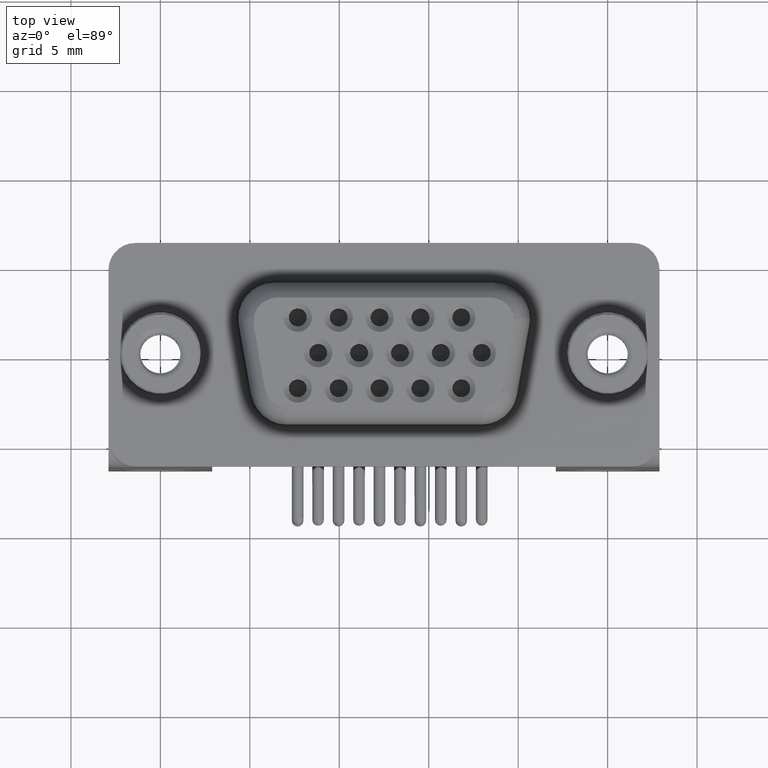
[diagram: clean part render]
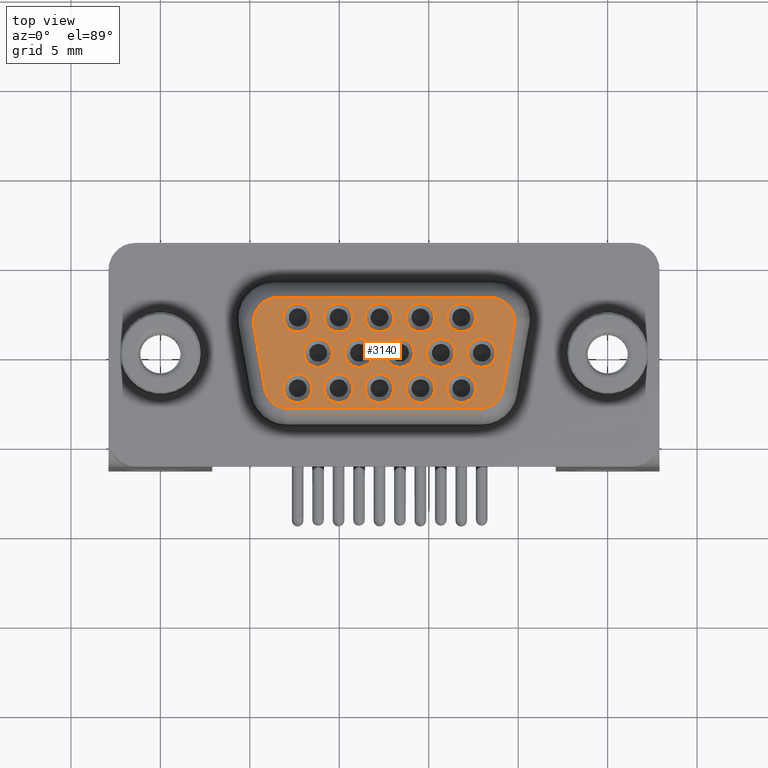
[diagram: same view with one face highlighted and labeled with its STEP entity id]
A machine part, top view. The second image highlights one B-rep face of the part: STEP entity #3140.
In plain terms, the highlighted planar face has unit normal (0, 0, -1).
Its self-contained STEP definition (entity closure, byte-faithful):
#20 = EDGE_LOOP ( 'NONE', ( #2665, #11763 ) ) ;
#36 = DIRECTION ( 'NONE',  ( -0.0000000000000000000, -0.0000000000000000000, -1.000000000000000000 ) ) ;
#45 = EDGE_CURVE ( 'NONE', #363, #9414, #1243, .T. ) ;
#84 = EDGE_CURVE ( 'NONE', #9128, #8934, #4857, .T. ) ;
#199 = CARTESIAN_POINT ( 'NONE',  ( 15.67499999999999700, -2.799542582850849400E-016, 6.200000000000000200 ) ) ;
#286 = ORIENTED_EDGE ( 'NONE', *, *, #1937, .T. ) ;
#363 = VERTEX_POINT ( 'NONE', #11757 ) ;
#432 = DIRECTION ( 'NONE',  ( -0.0000000000000000000, -0.0000000000000000000, -1.000000000000000000 ) ) ;
#640 = CIRCLE ( 'NONE', #5137, 0.7999999999999951600 ) ;
#746 = DIRECTION ( 'NONE',  ( -1.000000000000000000, 0.0000000000000000000, 0.0000000000000000000 ) ) ;
#1006 = CARTESIAN_POINT ( 'NONE',  ( 15.67499999999999700, -2.799542582850849400E-016, 6.200000000000000200 ) ) ;
#1010 = AXIS2_PLACEMENT_3D ( 'NONE', #2166, #17286, #14848 ) ;
#1032 = AXIS2_PLACEMENT_3D ( 'NONE', #1507, #13863, #3282 ) ;
#1060 = AXIS2_PLACEMENT_3D ( 'NONE', #14928, #4360, #16712 ) ;
#1166 = CARTESIAN_POINT ( 'NONE',  ( 7.167144432479602800, -3.099999999999997000, 6.200000000000000200 ) ) ;
#1202 = VECTOR ( 'NONE', #2457, 1000.000000000000000 ) ;
#1211 = VERTEX_POINT ( 'NONE', #1434 ) ;
#1243 = CIRCLE ( 'NONE', #6220, 0.7999999999999951600 ) ;
#1245 = DIRECTION ( 'NONE',  ( -1.000000000000000000, 0.0000000000000000000, 0.0000000000000000000 ) ) ;
#1267 = CARTESIAN_POINT ( 'NONE',  ( 5.837653965913120600, -1.984425039850344000, 6.200000000000000200 ) ) ;
#1371 = EDGE_LOOP ( 'NONE', ( #22061, #2471 ) ) ;
#1388 = VERTEX_POINT ( 'NONE', #22661 ) ;
#1396 = DIRECTION ( 'NONE',  ( -0.0000000000000000000, -0.0000000000000000000, -1.000000000000000000 ) ) ;
#1418 = DIRECTION ( 'NONE',  ( -0.0000000000000000000, -0.0000000000000000000, -1.000000000000000000 ) ) ;
#1434 = CARTESIAN_POINT ( 'NONE',  ( 19.16234603408688400, -1.984425039850343600, 6.200000000000000200 ) ) ;
#1492 = EDGE_CURVE ( 'NONE', #4790, #14290, #8264, .T. ) ;
#1507 = CARTESIAN_POINT ( 'NONE',  ( 16.81799999999999800, 1.980000000000000000, 6.200000000000000200 ) ) ;
#1546 = AXIS2_PLACEMENT_3D ( 'NONE', #13796, #13709, #13418 ) ;
#1707 = AXIS2_PLACEMENT_3D ( 'NONE', #21919, #11330, #746 ) ;
#1775 = EDGE_CURVE ( 'NONE', #20468, #17332, #16830, .T. ) ;
#1779 = PLANE ( 'NONE',  #7837 ) ;
#1787 = AXIS2_PLACEMENT_3D ( 'NONE', #3235, #15615, #5041 ) ;
#1937 = EDGE_CURVE ( 'NONE', #18495, #20769, #17856, .T. ) ;
#1951 = DIRECTION ( 'NONE',  ( -1.000000000000000000, 0.0000000000000000000, 0.0000000000000000000 ) ) ;
#2036 = VERTEX_POINT ( 'NONE', #3236 ) ;
#2071 = CARTESIAN_POINT ( 'NONE',  ( 14.53200000000000000, 1.979999999999999500, 6.200000000000000200 ) ) ;
#2166 = CARTESIAN_POINT ( 'NONE',  ( 16.81799999999999800, 1.980000000000000000, 6.200000000000000200 ) ) ;
#2457 = DIRECTION ( 'NONE',  ( -1.000000000000000000, 0.0000000000000000000, 0.0000000000000000000 ) ) ;
#2471 = ORIENTED_EDGE ( 'NONE', *, *, #19813, .T. ) ;
#2567 = CARTESIAN_POINT ( 'NONE',  ( 15.33199999999999500, 1.979999999999999500, 6.200000000000000200 ) ) ;
#2665 = ORIENTED_EDGE ( 'NONE', *, *, #3248, .T. ) ;
#2669 = CARTESIAN_POINT ( 'NONE',  ( 10.30300000000000300, -7.418910309234672200E-016, 6.200000000000000200 ) ) ;
#2684 = AXIS2_PLACEMENT_3D ( 'NONE', #10523, #22864, #12313 ) ;
#2701 = CARTESIAN_POINT ( 'NONE',  ( 14.87500000000000400, -1.819825143532972900E-016, 6.200000000000000200 ) ) ;
#2728 = ORIENTED_EDGE ( 'NONE', *, *, #13611, .T. ) ;
#2768 = ORIENTED_EDGE ( 'NONE', *, *, #21058, .T. ) ;
#2792 = DIRECTION ( 'NONE',  ( -1.000000000000000000, 0.0000000000000000000, 0.0000000000000000000 ) ) ;
#2961 = FACE_BOUND ( 'NONE', #15998, .T. ) ;
#2985 = CARTESIAN_POINT ( 'NONE',  ( 9.960000000000000900, -1.980000000000000900, 6.200000000000000200 ) ) ;
#3044 = VERTEX_POINT ( 'NONE', #17627 ) ;
#3049 = ORIENTED_EDGE ( 'NONE', *, *, #11348, .F. ) ;
#3140 = ADVANCED_FACE ( 'NONE', ( #14551, #5178, #18125, #13444, #8750, #4053, #22286, #17577, #12881, #8203, #3496, #21734, #17049, #12347, #7626, #2961 ), #1779, .F. ) ;
#3235 = CARTESIAN_POINT ( 'NONE',  ( 6.550000000000000700, 1.750000000000002400, 6.200000000000000200 ) ) ;
#3236 = CARTESIAN_POINT ( 'NONE',  ( 19.77949046656648200, 1.515574960149655800, 6.200000000000000200 ) ) ;
#3248 = EDGE_CURVE ( 'NONE', #15813, #8460, #14833, .T. ) ;
#3269 = AXIS2_PLACEMENT_3D ( 'NONE', #17424, #6849, #19194 ) ;
#3282 = DIRECTION ( 'NONE',  ( -1.000000000000000000, 0.0000000000000000000, 0.0000000000000000000 ) ) ;
#3301 = VERTEX_POINT ( 'NONE', #16212 ) ;
#3355 = LINE ( 'NONE', #19236, #21595 ) ;
#3360 = DIRECTION ( 'NONE',  ( -1.000000000000000000, 0.0000000000000000000, 0.0000000000000000000 ) ) ;
#3420 = EDGE_CURVE ( 'NONE', #18607, #11928, #21440, .T. ) ;
#3496 = FACE_BOUND ( 'NONE', #7693, .T. ) ;
#3498 = DIRECTION ( 'NONE',  ( -0.0000000000000000000, -0.0000000000000000000, -1.000000000000000000 ) ) ;
#3521 = CARTESIAN_POINT ( 'NONE',  ( 17.61799999999999500, 1.980000000000000000, 6.200000000000000200 ) ) ;
#3536 = ORIENTED_EDGE ( 'NONE', *, *, #20861, .T. ) ;
#3551 = DIRECTION ( 'NONE',  ( -1.000000000000000000, 0.0000000000000000000, 0.0000000000000000000 ) ) ;
#3555 = EDGE_CURVE ( 'NONE', #11274, #9349, #19226, .T. ) ;
#3566 = EDGE_CURVE ( 'NONE', #19413, #3044, #9834, .T. ) ;
#3675 = VERTEX_POINT ( 'NONE', #15436 ) ;
#3716 = DIRECTION ( 'NONE',  ( -0.0000000000000000000, 0.0000000000000000000, -1.000000000000000000 ) ) ;
#3746 = EDGE_CURVE ( 'NONE', #12358, #3301, #15370, .T. ) ;
#4049 = VERTEX_POINT ( 'NONE', #22535 ) ;
#4053 = FACE_BOUND ( 'NONE', #20, .T. ) ;
#4175 = CARTESIAN_POINT ( 'NONE',  ( 9.160000000000012600, 1.979999999999999100, 6.200000000000000200 ) ) ;
#4231 = VERTEX_POINT ( 'NONE', #1166 ) ;
#4239 = DIRECTION ( 'NONE',  ( -0.0000000000000000000, -0.0000000000000000000, -1.000000000000000000 ) ) ;
#4360 = DIRECTION ( 'NONE',  ( -0.0000000000000000000, -0.0000000000000000000, -1.000000000000000000 ) ) ;
#4364 = VERTEX_POINT ( 'NONE', #13935 ) ;
#4402 = CARTESIAN_POINT ( 'NONE',  ( 12.24600000000000000, -1.980000000000000400, 6.200000000000000200 ) ) ;
#4524 = ORIENTED_EDGE ( 'NONE', *, *, #20386, .T. ) ;
#4569 = EDGE_LOOP ( 'NONE', ( #6892, #6783 ) ) ;
#4582 = EDGE_CURVE ( 'NONE', #8934, #9128, #13115, .T. ) ;
#4599 = CARTESIAN_POINT ( 'NONE',  ( 18.45000000000000300, 1.750000000000002900, 6.200000000000000200 ) ) ;
#4628 = EDGE_LOOP ( 'NONE', ( #15722, #2728 ) ) ;
#4703 = CARTESIAN_POINT ( 'NONE',  ( 18.76099999999999200, 0.0000000000000000000, 6.200000000000000200 ) ) ;
#4785 = DIRECTION ( 'NONE',  ( -1.000000000000000000, 0.0000000000000000000, 0.0000000000000000000 ) ) ;
#4786 = AXIS2_PLACEMENT_3D ( 'NONE', #2985, #15344, #4785 ) ;
#4790 = VERTEX_POINT ( 'NONE', #10861 ) ;
#4796 = EDGE_CURVE ( 'NONE', #3675, #4049, #18632, .T. ) ;
#4849 = AXIS2_PLACEMENT_3D ( 'NONE', #1006, #13361, #2792 ) ;
#4857 = CIRCLE ( 'NONE', #8574, 0.7999999999999951600 ) ;
#4907 = AXIS2_PLACEMENT_3D ( 'NONE', #12019, #1418, #13766 ) ;
#4915 = CARTESIAN_POINT ( 'NONE',  ( 14.53200000000000000, 1.979999999999999500, 6.200000000000000200 ) ) ;
#5041 = DIRECTION ( 'NONE',  ( -1.000000000000000000, 0.0000000000000000000, 0.0000000000000000000 ) ) ;
#5129 = CIRCLE ( 'NONE', #13160, 0.7999999999999951600 ) ;
#5137 = AXIS2_PLACEMENT_3D ( 'NONE', #6180, #18512, #7935 ) ;
#5147 = AXIS2_PLACEMENT_3D ( 'NONE', #10984, #432, #12762 ) ;
#5158 = VECTOR ( 'NONE', #6405, 1000.000000000000100 ) ;
#5166 = DIRECTION ( 'NONE',  ( -0.0000000000000000000, -0.0000000000000000000, -1.000000000000000000 ) ) ;
#5178 = FACE_BOUND ( 'NONE', #9035, .T. ) ;
#5258 = EDGE_CURVE ( 'NONE', #3044, #22434, #19713, .T. ) ;
#5283 = CARTESIAN_POINT ( 'NONE',  ( 17.16100000000000100, 9.797174393178765800E-017, 6.200000000000000200 ) ) ;
#5706 = CARTESIAN_POINT ( 'NONE',  ( 16.47499999999999400, -2.799542582850849400E-016, 6.200000000000000200 ) ) ;
#5908 = LINE ( 'NONE', #9635, #1202 ) ;
#5947 = AXIS2_PLACEMENT_3D ( 'NONE', #20637, #10077, #22426 ) ;
#6180 = CARTESIAN_POINT ( 'NONE',  ( 8.816999999999998400, -1.119817033140339800E-015, 6.200000000000000200 ) ) ;
#6220 = AXIS2_PLACEMENT_3D ( 'NONE', #22705, #22733, #22551 ) ;
#6311 = ORIENTED_EDGE ( 'NONE', *, *, #11438, .F. ) ;
#6347 = CARTESIAN_POINT ( 'NONE',  ( 17.61799999999999500, -1.980000000000000000, 6.200000000000000200 ) ) ;
#6365 = ORIENTED_EDGE ( 'NONE', *, *, #3555, .T. ) ;
#6405 = DIRECTION ( 'NONE',  ( -0.1736481776669235600, 0.9848077530122092400, 0.0000000000000000000 ) ) ;
#6592 = ORIENTED_EDGE ( 'NONE', *, *, #13836, .F. ) ;
#6593 = EDGE_LOOP ( 'NONE', ( #8530, #19542 ) ) ;
#6662 = AXIS2_PLACEMENT_3D ( 'NONE', #4915, #17246, #6672 ) ;
#6672 = DIRECTION ( 'NONE',  ( -1.000000000000000000, 0.0000000000000000000, 0.0000000000000000000 ) ) ;
#6686 = EDGE_CURVE ( 'NONE', #4364, #20867, #14732, .T. ) ;
#6742 = AXIS2_PLACEMENT_3D ( 'NONE', #14804, #12104, #11649 ) ;
#6783 = ORIENTED_EDGE ( 'NONE', *, *, #15872, .T. ) ;
#6849 = DIRECTION ( 'NONE',  ( -0.0000000000000000000, -0.0000000000000000000, -1.000000000000000000 ) ) ;
#6892 = ORIENTED_EDGE ( 'NONE', *, *, #21610, .T. ) ;
#6936 = CIRCLE ( 'NONE', #11363, 0.7999999999999951600 ) ;
#7016 = CIRCLE ( 'NONE', #6662, 0.7999999999999951600 ) ;
#7022 = CIRCLE ( 'NONE', #5947, 0.7999999999999882800 ) ;
#7469 = EDGE_CURVE ( 'NONE', #15425, #4231, #5908, .T. ) ;
#7496 = CARTESIAN_POINT ( 'NONE',  ( 12.24600000000000000, -1.980000000000000400, 6.200000000000000200 ) ) ;
#7626 = FACE_BOUND ( 'NONE', #16176, .T. ) ;
#7693 = EDGE_LOOP ( 'NONE', ( #22625, #2768 ) ) ;
#7737 = DIRECTION ( 'NONE',  ( 1.000000000000000000, 0.0000000000000000000, 0.0000000000000000000 ) ) ;
#7837 = AXIS2_PLACEMENT_3D ( 'NONE', #4599, #3716, #3551 ) ;
#7935 = DIRECTION ( 'NONE',  ( -1.000000000000000000, 0.0000000000000000000, 0.0000000000000000000 ) ) ;
#8075 = CIRCLE ( 'NONE', #4849, 0.7999999999999951600 ) ;
#8093 = CARTESIAN_POINT ( 'NONE',  ( 12.58900000000000200, -4.619367726383822300E-016, 6.200000000000000200 ) ) ;
#8122 = CARTESIAN_POINT ( 'NONE',  ( 9.960000000000000900, -1.980000000000000900, 6.200000000000000200 ) ) ;
#8143 = EDGE_CURVE ( 'NONE', #17375, #15411, #18853, .T. ) ;
#8203 = FACE_BOUND ( 'NONE', #19508, .T. ) ;
#8264 = CIRCLE ( 'NONE', #18124, 0.7999999999999951600 ) ;
#8433 = DIRECTION ( 'NONE',  ( -0.0000000000000000000, -0.0000000000000000000, -1.000000000000000000 ) ) ;
#8460 = VERTEX_POINT ( 'NONE', #15348 ) ;
#8484 = DIRECTION ( 'NONE',  ( -1.000000000000000000, 0.0000000000000000000, 0.0000000000000000000 ) ) ;
#8530 = ORIENTED_EDGE ( 'NONE', *, *, #4582, .T. ) ;
#8574 = AXIS2_PLACEMENT_3D ( 'NONE', #17536, #17628, #17605 ) ;
#8717 = CIRCLE ( 'NONE', #2684, 0.7999999999999951600 ) ;
#8742 = ORIENTED_EDGE ( 'NONE', *, *, #15463, .F. ) ;
#8750 = FACE_BOUND ( 'NONE', #17009, .T. ) ;
#8784 = EDGE_CURVE ( 'NONE', #9349, #11274, #8892, .T. ) ;
#8892 = CIRCLE ( 'NONE', #5147, 0.7999999999999951600 ) ;
#8906 = ORIENTED_EDGE ( 'NONE', *, *, #21146, .T. ) ;
#8934 = VERTEX_POINT ( 'NONE', #13216 ) ;
#9035 = EDGE_LOOP ( 'NONE', ( #4524, #16414 ) ) ;
#9058 = EDGE_CURVE ( 'NONE', #14290, #4790, #22136, .T. ) ;
#9128 = VERTEX_POINT ( 'NONE', #13827 ) ;
#9132 = ORIENTED_EDGE ( 'NONE', *, *, #45, .T. ) ;
#9226 = EDGE_CURVE ( 'NONE', #11928, #18607, #6936, .T. ) ;
#9247 = AXIS2_PLACEMENT_3D ( 'NONE', #15741, #5166, #17497 ) ;
#9269 = CIRCLE ( 'NONE', #1032, 0.7999999999999951600 ) ;
#9281 = ORIENTED_EDGE ( 'NONE', *, *, #8784, .T. ) ;
#9282 = DIRECTION ( 'NONE',  ( -1.000000000000000000, 0.0000000000000000000, 0.0000000000000000000 ) ) ;
#9349 = VERTEX_POINT ( 'NONE', #17976 ) ;
#9414 = VERTEX_POINT ( 'NONE', #21701 ) ;
#9443 = DIRECTION ( 'NONE',  ( -1.000000000000000000, 0.0000000000000000000, 0.0000000000000000000 ) ) ;
#9602 = VERTEX_POINT ( 'NONE', #2701 ) ;
#9633 = CARTESIAN_POINT ( 'NONE',  ( 8.816999999999998400, -1.119817033140339800E-015, 6.200000000000000200 ) ) ;
#9635 = CARTESIAN_POINT ( 'NONE',  ( 17.83285556752040100, -3.099999999999997000, 6.200000000000000200 ) ) ;
#9834 = LINE ( 'NONE', #22818, #5158 ) ;
#9844 = DIRECTION ( 'NONE',  ( -1.000000000000000000, 0.0000000000000000000, 0.0000000000000000000 ) ) ;
#9881 = DIRECTION ( 'NONE',  ( -1.000000000000000000, 0.0000000000000000000, 0.0000000000000000000 ) ) ;
#10001 = CARTESIAN_POINT ( 'NONE',  ( 8.017000000000003000, -1.021845289208551900E-015, 6.200000000000000200 ) ) ;
#10015 = DIRECTION ( 'NONE',  ( -0.0000000000000000000, -0.0000000000000000000, -1.000000000000000000 ) ) ;
#10077 = DIRECTION ( 'NONE',  ( -0.0000000000000000000, -0.0000000000000000000, -1.000000000000000000 ) ) ;
#10121 = ORIENTED_EDGE ( 'NONE', *, *, #3566, .F. ) ;
#10160 = CARTESIAN_POINT ( 'NONE',  ( 13.38899999999999800, -5.599085165701698800E-016, 6.200000000000000200 ) ) ;
#10219 = CARTESIAN_POINT ( 'NONE',  ( 6.874000000000005000, 1.979999999999998600, 6.200000000000000200 ) ) ;
#10239 = CIRCLE ( 'NONE', #12823, 0.7999999999999951600 ) ;
#10362 = AXIS2_PLACEMENT_3D ( 'NONE', #7496, #19841, #9282 ) ;
#10408 = CARTESIAN_POINT ( 'NONE',  ( 13.73200000000000500, -1.980000000000000400, 6.200000000000000200 ) ) ;
#10439 = DIRECTION ( 'NONE',  ( -0.1736481776669231100, -0.9848077530122093500, 0.0000000000000000000 ) ) ;
#10494 = VERTEX_POINT ( 'NONE', #16410 ) ;
#10523 = CARTESIAN_POINT ( 'NONE',  ( 11.10299999999999800, -8.398627748552548700E-016, 6.200000000000000200 ) ) ;
#10582 = CARTESIAN_POINT ( 'NONE',  ( 13.38899999999999800, -5.599085165701698800E-016, 6.200000000000000200 ) ) ;
#10657 = EDGE_CURVE ( 'NONE', #8460, #15813, #7016, .T. ) ;
#10815 = AXIS2_PLACEMENT_3D ( 'NONE', #9633, #21991, #11425 ) ;
#10861 = CARTESIAN_POINT ( 'NONE',  ( 15.33199999999999500, -1.980000000000000400, 6.200000000000000200 ) ) ;
#10984 = CARTESIAN_POINT ( 'NONE',  ( 16.81799999999999800, -1.980000000000000000, 6.200000000000000200 ) ) ;
#11000 = ORIENTED_EDGE ( 'NONE', *, *, #7469, .F. ) ;
#11127 = ORIENTED_EDGE ( 'NONE', *, *, #14527, .T. ) ;
#11137 = CIRCLE ( 'NONE', #16437, 1.350000000000000500 ) ;
#11274 = VERTEX_POINT ( 'NONE', #6347 ) ;
#11330 = DIRECTION ( 'NONE',  ( -0.0000000000000000000, -0.0000000000000000000, -1.000000000000000000 ) ) ;
#11348 = EDGE_CURVE ( 'NONE', #1211, #15425, #11137, .T. ) ;
#11363 = AXIS2_PLACEMENT_3D ( 'NONE', #10582, #36, #12366 ) ;
#11400 = AXIS2_PLACEMENT_3D ( 'NONE', #2071, #1396, #15623 ) ;
#11425 = DIRECTION ( 'NONE',  ( -1.000000000000000000, 0.0000000000000000000, 0.0000000000000000000 ) ) ;
#11438 = EDGE_CURVE ( 'NONE', #22434, #17375, #14167, .T. ) ;
#11649 = DIRECTION ( 'NONE',  ( -1.000000000000000000, 0.0000000000000000000, 0.0000000000000000000 ) ) ;
#11757 = CARTESIAN_POINT ( 'NONE',  ( 11.44600000000000500, 1.979999999999999500, 6.200000000000000200 ) ) ;
#11763 = ORIENTED_EDGE ( 'NONE', *, *, #10657, .T. ) ;
#11833 = DIRECTION ( 'NONE',  ( -0.0000000000000000000, -0.0000000000000000000, -1.000000000000000000 ) ) ;
#11842 = EDGE_CURVE ( 'NONE', #1388, #21625, #21048, .T. ) ;
#11913 = ORIENTED_EDGE ( 'NONE', *, *, #5258, .F. ) ;
#11914 = CARTESIAN_POINT ( 'NONE',  ( 14.53200000000000000, -1.980000000000000400, 6.200000000000000200 ) ) ;
#11928 = VERTEX_POINT ( 'NONE', #8093 ) ;
#11958 = CIRCLE ( 'NONE', #1707, 1.350000000000000500 ) ;
#11964 = EDGE_CURVE ( 'NONE', #4231, #19413, #14698, .T. ) ;
#11993 = DIRECTION ( 'NONE',  ( -0.0000000000000000000, -0.0000000000000000000, -1.000000000000000000 ) ) ;
#12019 = CARTESIAN_POINT ( 'NONE',  ( 17.96099999999999900, 0.0000000000000000000, 6.200000000000000200 ) ) ;
#12104 = DIRECTION ( 'NONE',  ( -0.0000000000000000000, -0.0000000000000000000, -1.000000000000000000 ) ) ;
#12313 = DIRECTION ( 'NONE',  ( -1.000000000000000000, 0.0000000000000000000, 0.0000000000000000000 ) ) ;
#12347 = FACE_BOUND ( 'NONE', #4569, .T. ) ;
#12358 = VERTEX_POINT ( 'NONE', #2669 ) ;
#12366 = DIRECTION ( 'NONE',  ( -1.000000000000000000, 0.0000000000000000000, 0.0000000000000000000 ) ) ;
#12536 = DIRECTION ( 'NONE',  ( -0.0000000000000000000, -0.0000000000000000000, -1.000000000000000000 ) ) ;
#12619 = CARTESIAN_POINT ( 'NONE',  ( 6.550000000000000700, 3.100000000000002800, 6.200000000000000200 ) ) ;
#12682 = ORIENTED_EDGE ( 'NONE', *, *, #20983, .T. ) ;
#12762 = DIRECTION ( 'NONE',  ( -1.000000000000000000, 0.0000000000000000000, 0.0000000000000000000 ) ) ;
#12823 = AXIS2_PLACEMENT_3D ( 'NONE', #8122, #20458, #9881 ) ;
#12881 = FACE_BOUND ( 'NONE', #21469, .T. ) ;
#12977 = EDGE_LOOP ( 'NONE', ( #6365, #9281 ) ) ;
#13115 = CIRCLE ( 'NONE', #17255, 0.7999999999999951600 ) ;
#13160 = AXIS2_PLACEMENT_3D ( 'NONE', #14079, #3498, #15873 ) ;
#13216 = CARTESIAN_POINT ( 'NONE',  ( 8.473999999999994900, -1.980000000000001300, 6.200000000000000200 ) ) ;
#13245 = ORIENTED_EDGE ( 'NONE', *, *, #3746, .T. ) ;
#13282 = VERTEX_POINT ( 'NONE', #4175 ) ;
#13361 = DIRECTION ( 'NONE',  ( -0.0000000000000000000, -0.0000000000000000000, -1.000000000000000000 ) ) ;
#13418 = DIRECTION ( 'NONE',  ( -1.000000000000000000, 0.0000000000000000000, 0.0000000000000000000 ) ) ;
#13444 = FACE_BOUND ( 'NONE', #1371, .T. ) ;
#13479 = ORIENTED_EDGE ( 'NONE', *, *, #3420, .T. ) ;
#13611 = EDGE_CURVE ( 'NONE', #20867, #4364, #21069, .T. ) ;
#13634 = ORIENTED_EDGE ( 'NONE', *, *, #19524, .T. ) ;
#13648 = ORIENTED_EDGE ( 'NONE', *, *, #9226, .T. ) ;
#13709 = DIRECTION ( 'NONE',  ( -0.0000000000000000000, -0.0000000000000000000, -1.000000000000000000 ) ) ;
#13766 = DIRECTION ( 'NONE',  ( -1.000000000000000000, 0.0000000000000000000, 0.0000000000000000000 ) ) ;
#13796 = CARTESIAN_POINT ( 'NONE',  ( 11.10299999999999800, -8.398627748552548700E-016, 6.200000000000000200 ) ) ;
#13827 = CARTESIAN_POINT ( 'NONE',  ( 6.874000000000005000, -1.980000000000001300, 6.200000000000000200 ) ) ;
#13836 = EDGE_CURVE ( 'NONE', #15411, #2036, #11958, .T. ) ;
#13863 = DIRECTION ( 'NONE',  ( -0.0000000000000000000, -0.0000000000000000000, -1.000000000000000000 ) ) ;
#13935 = CARTESIAN_POINT ( 'NONE',  ( 8.473999999999994900, 1.979999999999998600, 6.200000000000000200 ) ) ;
#14078 = EDGE_CURVE ( 'NONE', #16274, #9602, #8075, .T. ) ;
#14079 = CARTESIAN_POINT ( 'NONE',  ( 12.24600000000000000, 1.979999999999999500, 6.200000000000000200 ) ) ;
#14167 = CIRCLE ( 'NONE', #1787, 1.350000000000000500 ) ;
#14253 = ORIENTED_EDGE ( 'NONE', *, *, #11842, .T. ) ;
#14273 = AXIS2_PLACEMENT_3D ( 'NONE', #10160, #10015, #9844 ) ;
#14290 = VERTEX_POINT ( 'NONE', #10408 ) ;
#14527 = EDGE_CURVE ( 'NONE', #21625, #1388, #640, .T. ) ;
#14551 = FACE_OUTER_BOUND ( 'NONE', #18714, .T. ) ;
#14698 = CIRCLE ( 'NONE', #3269, 1.349999999999999600 ) ;
#14732 = CIRCLE ( 'NONE', #14941, 0.7999999999999951600 ) ;
#14804 = CARTESIAN_POINT ( 'NONE',  ( 16.81799999999999800, -1.980000000000000000, 6.200000000000000200 ) ) ;
#14833 = CIRCLE ( 'NONE', #11400, 0.7999999999999951600 ) ;
#14848 = DIRECTION ( 'NONE',  ( -1.000000000000000000, 0.0000000000000000000, 0.0000000000000000000 ) ) ;
#14928 = CARTESIAN_POINT ( 'NONE',  ( 9.960000000000000900, 1.979999999999999100, 6.200000000000000200 ) ) ;
#14941 = AXIS2_PLACEMENT_3D ( 'NONE', #20829, #20774, #8484 ) ;
#15340 = CIRCLE ( 'NONE', #10362, 0.7999999999999951600 ) ;
#15344 = DIRECTION ( 'NONE',  ( -0.0000000000000000000, -0.0000000000000000000, -1.000000000000000000 ) ) ;
#15348 = CARTESIAN_POINT ( 'NONE',  ( 13.73200000000000500, 1.979999999999999500, 6.200000000000000200 ) ) ;
#15370 = CIRCLE ( 'NONE', #1546, 0.7999999999999951600 ) ;
#15411 = VERTEX_POINT ( 'NONE', #22555 ) ;
#15425 = VERTEX_POINT ( 'NONE', #17383 ) ;
#15427 = ORIENTED_EDGE ( 'NONE', *, *, #9058, .T. ) ;
#15436 = CARTESIAN_POINT ( 'NONE',  ( 11.44600000000000500, -1.980000000000000400, 6.200000000000000200 ) ) ;
#15463 = EDGE_CURVE ( 'NONE', #2036, #1211, #3355, .T. ) ;
#15547 = VERTEX_POINT ( 'NONE', #19397 ) ;
#15615 = DIRECTION ( 'NONE',  ( -0.0000000000000000000, -0.0000000000000000000, -1.000000000000000000 ) ) ;
#15623 = DIRECTION ( 'NONE',  ( -1.000000000000000000, 0.0000000000000000000, 0.0000000000000000000 ) ) ;
#15722 = ORIENTED_EDGE ( 'NONE', *, *, #6686, .T. ) ;
#15741 = CARTESIAN_POINT ( 'NONE',  ( 7.674000000000000400, 1.979999999999998600, 6.200000000000000200 ) ) ;
#15813 = VERTEX_POINT ( 'NONE', #2567 ) ;
#15872 = EDGE_CURVE ( 'NONE', #17595, #10494, #10239, .T. ) ;
#15873 = DIRECTION ( 'NONE',  ( -1.000000000000000000, 0.0000000000000000000, 0.0000000000000000000 ) ) ;
#15943 = AXIS2_PLACEMENT_3D ( 'NONE', #17676, #22779, #9443 ) ;
#15954 = CARTESIAN_POINT ( 'NONE',  ( 16.01800000000000400, 1.980000000000000000, 6.200000000000000200 ) ) ;
#15998 = EDGE_LOOP ( 'NONE', ( #19860, #15427 ) ) ;
#16142 = CARTESIAN_POINT ( 'NONE',  ( 17.96099999999999900, 0.0000000000000000000, 6.200000000000000200 ) ) ;
#16176 = EDGE_LOOP ( 'NONE', ( #8906, #19699 ) ) ;
#16212 = CARTESIAN_POINT ( 'NONE',  ( 11.90299999999999300, -8.398627748552548700E-016, 6.200000000000000200 ) ) ;
#16274 = VERTEX_POINT ( 'NONE', #5706 ) ;
#16410 = CARTESIAN_POINT ( 'NONE',  ( 10.75999999999999400, -1.980000000000000900, 6.200000000000000200 ) ) ;
#16414 = ORIENTED_EDGE ( 'NONE', *, *, #1775, .T. ) ;
#16437 = AXIS2_PLACEMENT_3D ( 'NONE', #22398, #11833, #1245 ) ;
#16712 = DIRECTION ( 'NONE',  ( -1.000000000000000000, 0.0000000000000000000, 0.0000000000000000000 ) ) ;
#16801 = CARTESIAN_POINT ( 'NONE',  ( 9.160000000000005500, -1.980000000000000900, 6.200000000000000200 ) ) ;
#16830 = CIRCLE ( 'NONE', #1010, 0.7999999999999951600 ) ;
#16974 = DIRECTION ( 'NONE',  ( -1.000000000000000000, 0.0000000000000000000, 0.0000000000000000000 ) ) ;
#17009 = EDGE_LOOP ( 'NONE', ( #12682, #9132 ) ) ;
#17049 = FACE_BOUND ( 'NONE', #6593, .T. ) ;
#17246 = DIRECTION ( 'NONE',  ( -0.0000000000000000000, -0.0000000000000000000, -1.000000000000000000 ) ) ;
#17255 = AXIS2_PLACEMENT_3D ( 'NONE', #17836, #17775, #16974 ) ;
#17263 = CIRCLE ( 'NONE', #1060, 0.7999999999999882800 ) ;
#17286 = DIRECTION ( 'NONE',  ( -0.0000000000000000000, -0.0000000000000000000, -1.000000000000000000 ) ) ;
#17332 = VERTEX_POINT ( 'NONE', #3521 ) ;
#17375 = VERTEX_POINT ( 'NONE', #12619 ) ;
#17383 = CARTESIAN_POINT ( 'NONE',  ( 17.83285556752040100, -3.099999999999997000, 6.200000000000000200 ) ) ;
#17424 = CARTESIAN_POINT ( 'NONE',  ( 7.167144432479602800, -1.749999999999997100, 6.200000000000000200 ) ) ;
#17497 = DIRECTION ( 'NONE',  ( -1.000000000000000000, 0.0000000000000000000, 0.0000000000000000000 ) ) ;
#17536 = CARTESIAN_POINT ( 'NONE',  ( 7.674000000000000400, -1.980000000000001300, 6.200000000000000200 ) ) ;
#17569 = AXIS2_PLACEMENT_3D ( 'NONE', #16142, #22180, #21532 ) ;
#17577 = FACE_BOUND ( 'NONE', #19590, .T. ) ;
#17595 = VERTEX_POINT ( 'NONE', #16801 ) ;
#17596 = CARTESIAN_POINT ( 'NONE',  ( 5.200000000000000200, 1.750000000000002400, 6.200000000000000200 ) ) ;
#17605 = DIRECTION ( 'NONE',  ( -1.000000000000000000, 0.0000000000000000000, 0.0000000000000000000 ) ) ;
#17627 = CARTESIAN_POINT ( 'NONE',  ( 5.220509533433517600, 1.515574960149655800, 6.200000000000000200 ) ) ;
#17628 = DIRECTION ( 'NONE',  ( -0.0000000000000000000, -0.0000000000000000000, -1.000000000000000000 ) ) ;
#17667 = DIRECTION ( 'NONE',  ( -1.000000000000000000, 0.0000000000000000000, 0.0000000000000000000 ) ) ;
#17676 = CARTESIAN_POINT ( 'NONE',  ( 6.550000000000000700, 1.750000000000002400, 6.200000000000000200 ) ) ;
#17775 = DIRECTION ( 'NONE',  ( -0.0000000000000000000, -0.0000000000000000000, -1.000000000000000000 ) ) ;
#17836 = CARTESIAN_POINT ( 'NONE',  ( 7.674000000000000400, -1.980000000000001300, 6.200000000000000200 ) ) ;
#17856 = CIRCLE ( 'NONE', #17569, 0.7999999999999951600 ) ;
#17976 = CARTESIAN_POINT ( 'NONE',  ( 16.01800000000000400, -1.980000000000000000, 6.200000000000000200 ) ) ;
#18124 = AXIS2_PLACEMENT_3D ( 'NONE', #11914, #11993, #17667 ) ;
#18125 = FACE_BOUND ( 'NONE', #4628, .T. ) ;
#18319 = CARTESIAN_POINT ( 'NONE',  ( 6.550000000000000700, 3.100000000000002800, 6.200000000000000200 ) ) ;
#18495 = VERTEX_POINT ( 'NONE', #5283 ) ;
#18512 = DIRECTION ( 'NONE',  ( -0.0000000000000000000, -0.0000000000000000000, -1.000000000000000000 ) ) ;
#18607 = VERTEX_POINT ( 'NONE', #21538 ) ;
#18632 = CIRCLE ( 'NONE', #19171, 0.7999999999999951600 ) ;
#18714 = EDGE_LOOP ( 'NONE', ( #6592, #19334, #6311, #11913, #10121, #19749, #11000, #3049, #8742 ) ) ;
#18853 = LINE ( 'NONE', #18319, #22436 ) ;
#18889 = AXIS2_PLACEMENT_3D ( 'NONE', #18994, #8433, #20781 ) ;
#18994 = CARTESIAN_POINT ( 'NONE',  ( 14.53200000000000000, -1.980000000000000400, 6.200000000000000200 ) ) ;
#19171 = AXIS2_PLACEMENT_3D ( 'NONE', #4402, #4239, #3360 ) ;
#19194 = DIRECTION ( 'NONE',  ( -1.000000000000000000, 0.0000000000000000000, 0.0000000000000000000 ) ) ;
#19226 = CIRCLE ( 'NONE', #6742, 0.7999999999999951600 ) ;
#19236 = CARTESIAN_POINT ( 'NONE',  ( 19.77949046656648200, 1.515574960149655800, 6.200000000000000200 ) ) ;
#19334 = ORIENTED_EDGE ( 'NONE', *, *, #8143, .F. ) ;
#19397 = CARTESIAN_POINT ( 'NONE',  ( 10.75999999999998900, 1.979999999999999100, 6.200000000000000200 ) ) ;
#19413 = VERTEX_POINT ( 'NONE', #1267 ) ;
#19508 = EDGE_LOOP ( 'NONE', ( #13479, #13648 ) ) ;
#19524 = EDGE_CURVE ( 'NONE', #3301, #12358, #8717, .T. ) ;
#19542 = ORIENTED_EDGE ( 'NONE', *, *, #84, .T. ) ;
#19590 = EDGE_LOOP ( 'NONE', ( #14253, #11127 ) ) ;
#19615 = EDGE_LOOP ( 'NONE', ( #3536, #286 ) ) ;
#19699 = ORIENTED_EDGE ( 'NONE', *, *, #4796, .T. ) ;
#19713 = CIRCLE ( 'NONE', #15943, 1.350000000000000500 ) ;
#19749 = ORIENTED_EDGE ( 'NONE', *, *, #11964, .F. ) ;
#19813 = EDGE_CURVE ( 'NONE', #13282, #15547, #17263, .T. ) ;
#19841 = DIRECTION ( 'NONE',  ( -0.0000000000000000000, -0.0000000000000000000, -1.000000000000000000 ) ) ;
#19860 = ORIENTED_EDGE ( 'NONE', *, *, #1492, .T. ) ;
#20270 = AXIS2_PLACEMENT_3D ( 'NONE', #199, #12536, #1951 ) ;
#20300 = CIRCLE ( 'NONE', #4907, 0.7999999999999951600 ) ;
#20386 = EDGE_CURVE ( 'NONE', #17332, #20468, #9269, .T. ) ;
#20458 = DIRECTION ( 'NONE',  ( -0.0000000000000000000, -0.0000000000000000000, -1.000000000000000000 ) ) ;
#20468 = VERTEX_POINT ( 'NONE', #15954 ) ;
#20637 = CARTESIAN_POINT ( 'NONE',  ( 9.960000000000000900, 1.979999999999999100, 6.200000000000000200 ) ) ;
#20769 = VERTEX_POINT ( 'NONE', #4703 ) ;
#20774 = DIRECTION ( 'NONE',  ( -0.0000000000000000000, -0.0000000000000000000, -1.000000000000000000 ) ) ;
#20781 = DIRECTION ( 'NONE',  ( -1.000000000000000000, 0.0000000000000000000, 0.0000000000000000000 ) ) ;
#20829 = CARTESIAN_POINT ( 'NONE',  ( 7.674000000000000400, 1.979999999999998600, 6.200000000000000200 ) ) ;
#20861 = EDGE_CURVE ( 'NONE', #20769, #18495, #20300, .T. ) ;
#20867 = VERTEX_POINT ( 'NONE', #10219 ) ;
#20983 = EDGE_CURVE ( 'NONE', #9414, #363, #5129, .T. ) ;
#21048 = CIRCLE ( 'NONE', #10815, 0.7999999999999951600 ) ;
#21058 = EDGE_CURVE ( 'NONE', #9602, #16274, #21687, .T. ) ;
#21069 = CIRCLE ( 'NONE', #9247, 0.7999999999999951600 ) ;
#21100 = CIRCLE ( 'NONE', #4786, 0.7999999999999951600 ) ;
#21146 = EDGE_CURVE ( 'NONE', #4049, #3675, #15340, .T. ) ;
#21440 = CIRCLE ( 'NONE', #14273, 0.7999999999999951600 ) ;
#21469 = EDGE_LOOP ( 'NONE', ( #13634, #13245 ) ) ;
#21532 = DIRECTION ( 'NONE',  ( -1.000000000000000000, 0.0000000000000000000, 0.0000000000000000000 ) ) ;
#21538 = CARTESIAN_POINT ( 'NONE',  ( 14.18899999999999300, -5.599085165701698800E-016, 6.200000000000000200 ) ) ;
#21595 = VECTOR ( 'NONE', #10439, 1000.000000000000100 ) ;
#21610 = EDGE_CURVE ( 'NONE', #10494, #17595, #21100, .T. ) ;
#21625 = VERTEX_POINT ( 'NONE', #10001 ) ;
#21628 = EDGE_CURVE ( 'NONE', #15547, #13282, #7022, .T. ) ;
#21687 = CIRCLE ( 'NONE', #20270, 0.7999999999999951600 ) ;
#21701 = CARTESIAN_POINT ( 'NONE',  ( 13.04599999999999600, 1.979999999999999500, 6.200000000000000200 ) ) ;
#21734 = FACE_BOUND ( 'NONE', #12977, .T. ) ;
#21919 = CARTESIAN_POINT ( 'NONE',  ( 18.45000000000000300, 1.750000000000002900, 6.200000000000000200 ) ) ;
#21991 = DIRECTION ( 'NONE',  ( -0.0000000000000000000, -0.0000000000000000000, -1.000000000000000000 ) ) ;
#22061 = ORIENTED_EDGE ( 'NONE', *, *, #21628, .T. ) ;
#22136 = CIRCLE ( 'NONE', #18889, 0.7999999999999951600 ) ;
#22180 = DIRECTION ( 'NONE',  ( -0.0000000000000000000, -0.0000000000000000000, -1.000000000000000000 ) ) ;
#22286 = FACE_BOUND ( 'NONE', #19615, .T. ) ;
#22398 = CARTESIAN_POINT ( 'NONE',  ( 17.83285556752040100, -1.749999999999996900, 6.200000000000000200 ) ) ;
#22426 = DIRECTION ( 'NONE',  ( -1.000000000000000000, 0.0000000000000000000, 0.0000000000000000000 ) ) ;
#22434 = VERTEX_POINT ( 'NONE', #17596 ) ;
#22436 = VECTOR ( 'NONE', #7737, 1000.000000000000000 ) ;
#22535 = CARTESIAN_POINT ( 'NONE',  ( 13.04599999999999600, -1.980000000000000400, 6.200000000000000200 ) ) ;
#22551 = DIRECTION ( 'NONE',  ( -1.000000000000000000, 0.0000000000000000000, 0.0000000000000000000 ) ) ;
#22555 = CARTESIAN_POINT ( 'NONE',  ( 18.45000000000000300, 3.100000000000002800, 6.200000000000000200 ) ) ;
#22625 = ORIENTED_EDGE ( 'NONE', *, *, #14078, .T. ) ;
#22661 = CARTESIAN_POINT ( 'NONE',  ( 9.616999999999993800, -1.119817033140339800E-015, 6.200000000000000200 ) ) ;
#22705 = CARTESIAN_POINT ( 'NONE',  ( 12.24600000000000000, 1.979999999999999500, 6.200000000000000200 ) ) ;
#22733 = DIRECTION ( 'NONE',  ( -0.0000000000000000000, -0.0000000000000000000, -1.000000000000000000 ) ) ;
#22779 = DIRECTION ( 'NONE',  ( -0.0000000000000000000, -0.0000000000000000000, -1.000000000000000000 ) ) ;
#22818 = CARTESIAN_POINT ( 'NONE',  ( 5.837653965913120600, -1.984425039850344000, 6.200000000000000200 ) ) ;
#22864 = DIRECTION ( 'NONE',  ( -0.0000000000000000000, -0.0000000000000000000, -1.000000000000000000 ) ) ;